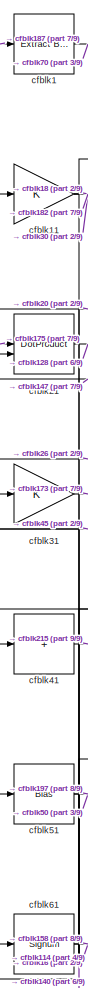
[diagram: root canvas - part 1/9, top left region]
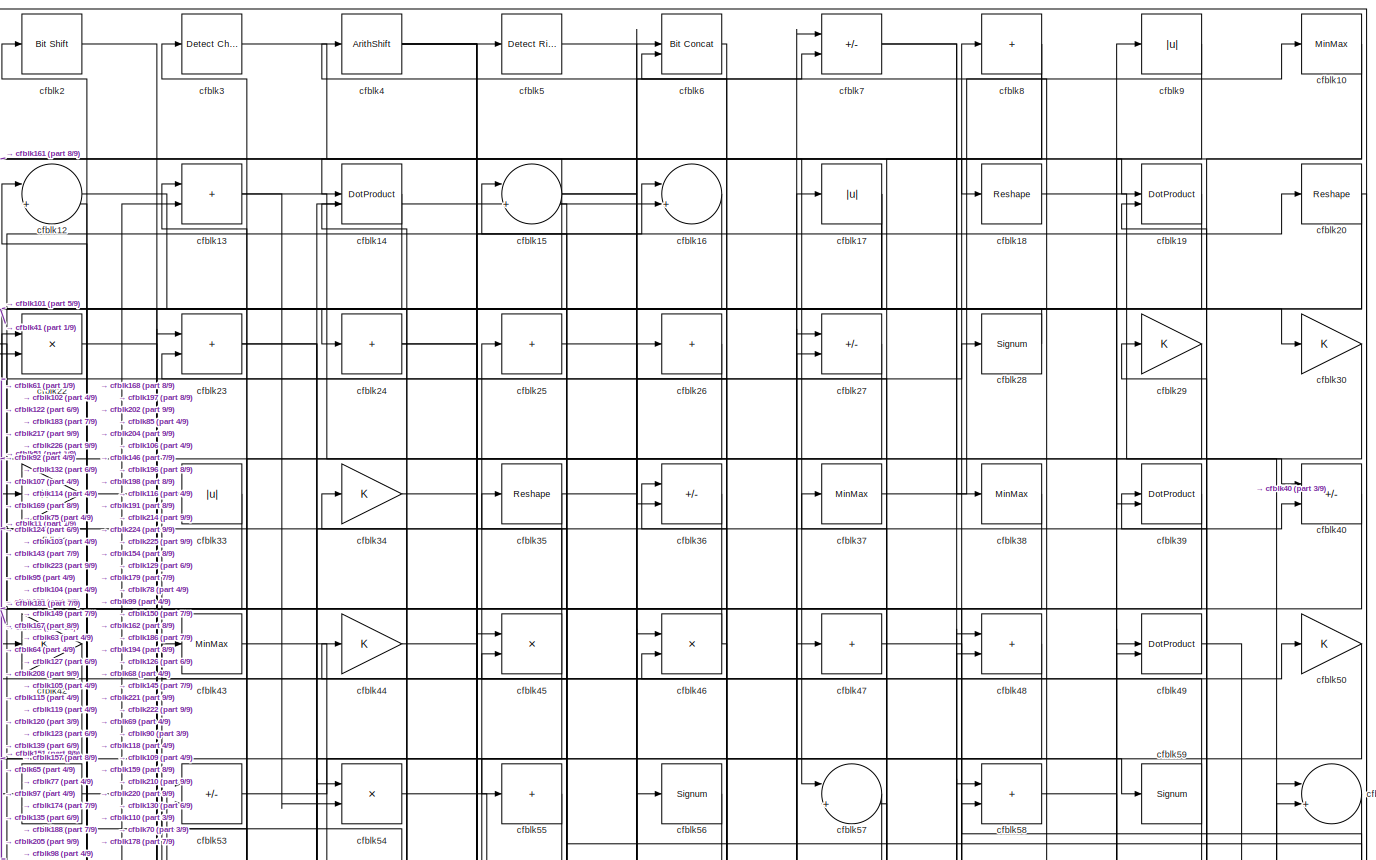
[diagram: root canvas - part 2/9, full width, top band]
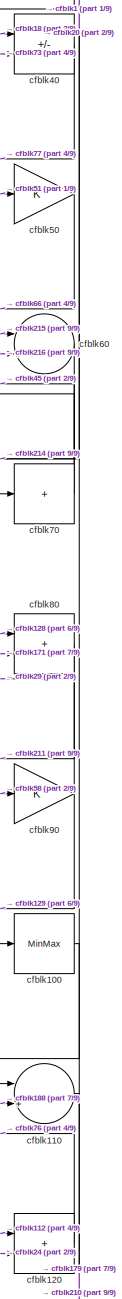
[diagram: root canvas - part 3/9, top right region]
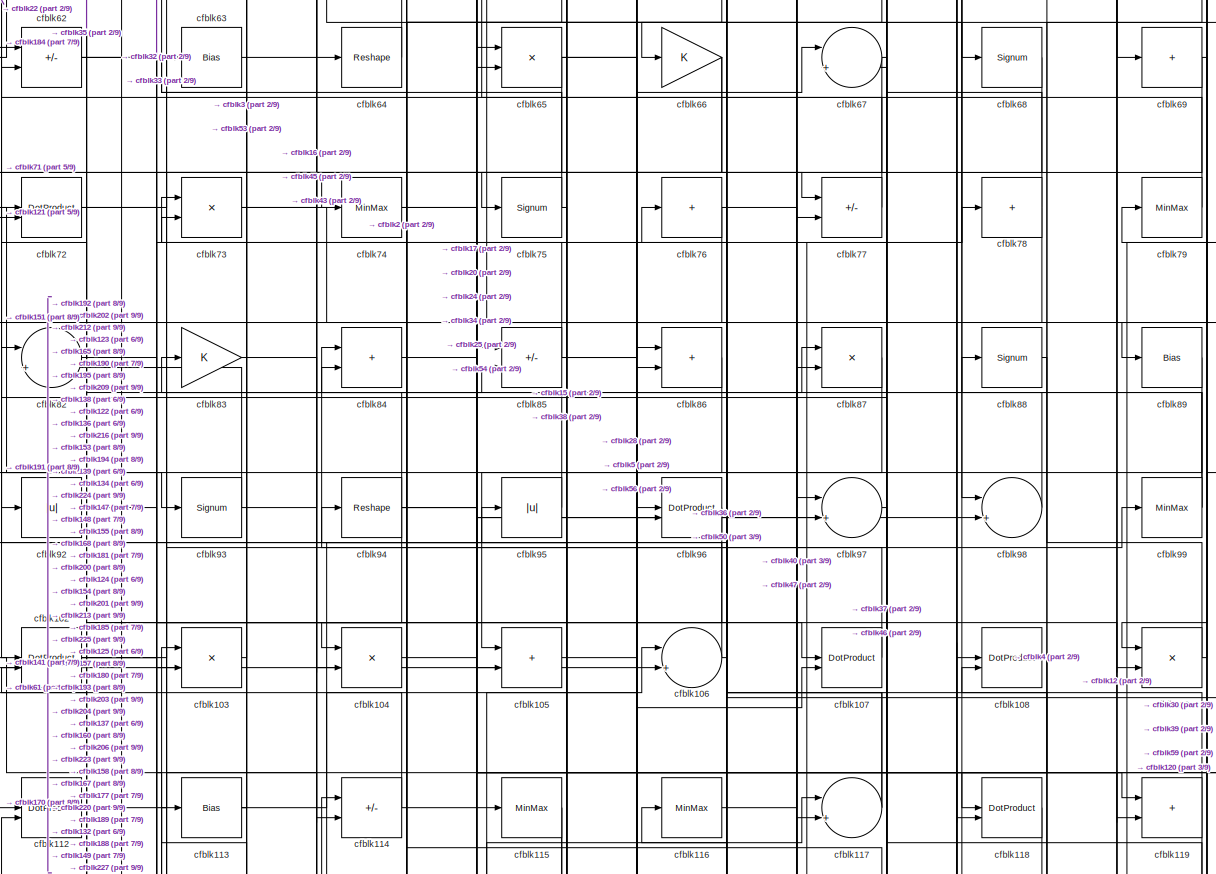
[diagram: root canvas - part 4/9, full width, middle band]
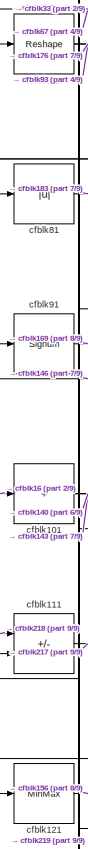
[diagram: root canvas - part 5/9, middle left region]
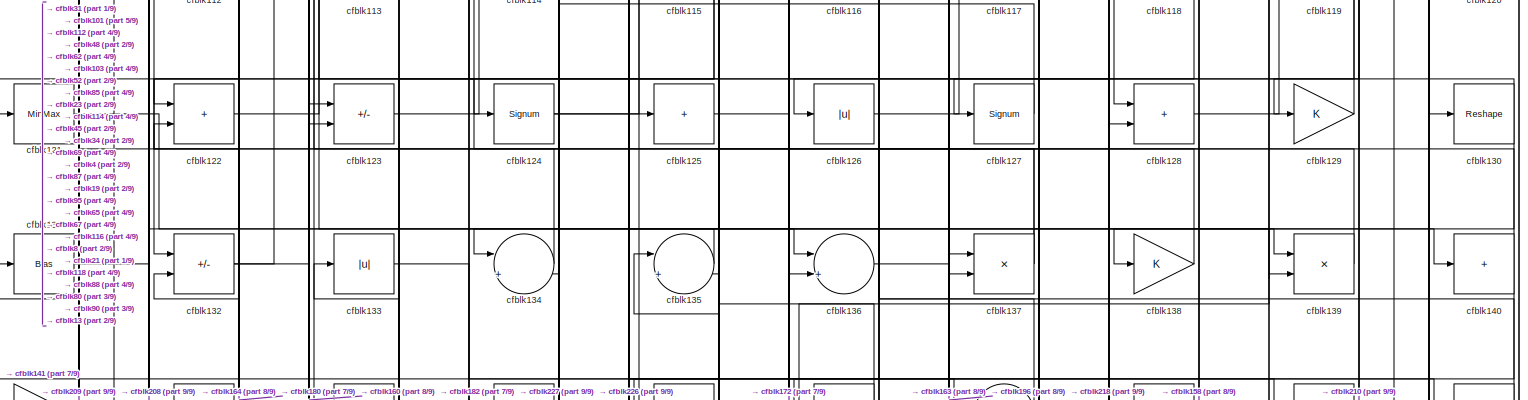
[diagram: root canvas - part 6/9, full width, middle band]
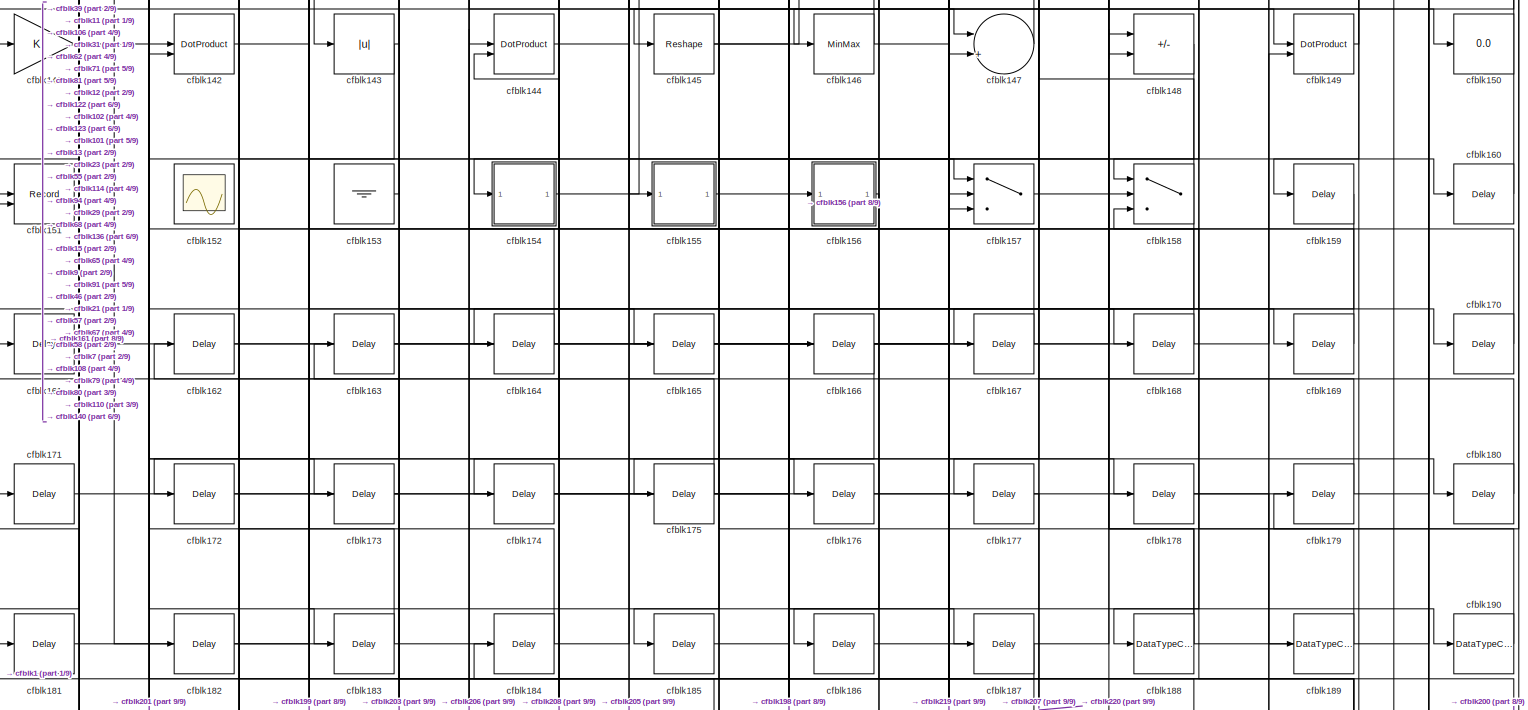
[diagram: root canvas - part 7/9, full width, bottom band]
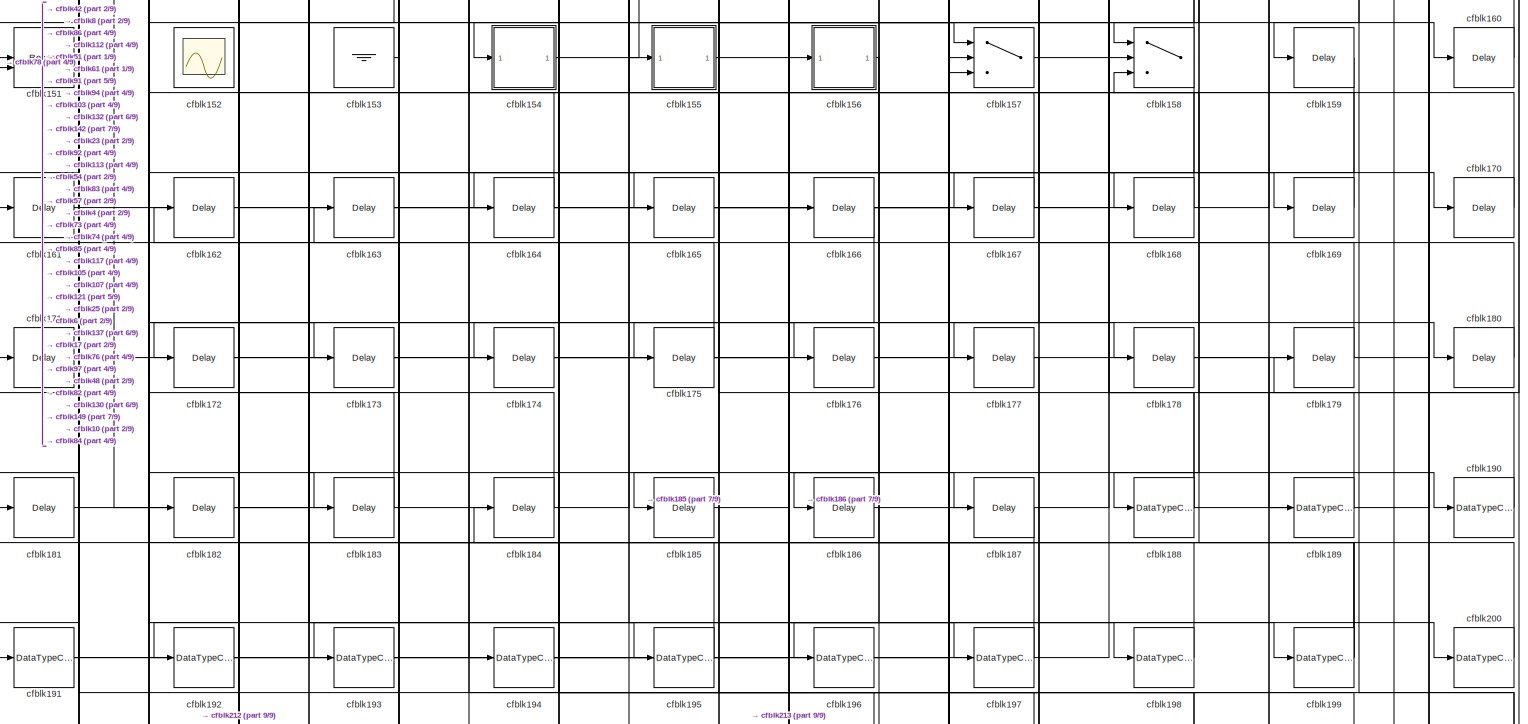
[diagram: root canvas - part 8/9, full width, bottom band]
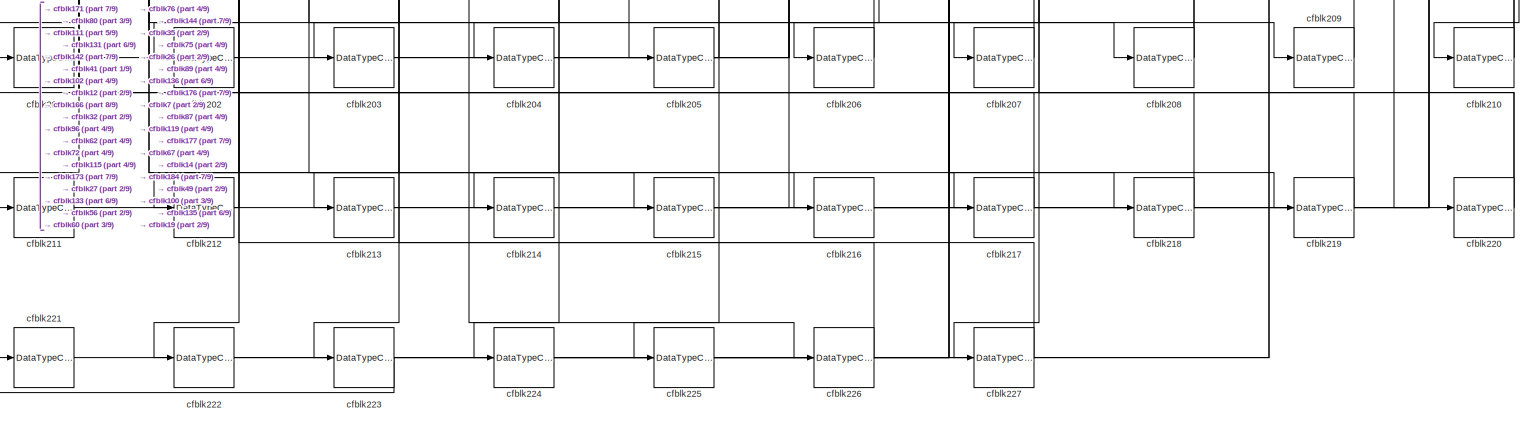
[diagram: root canvas - part 9/9, full width, bottom band]
MODEL slx_e378b6fee611
KIND model
CONFIG AbsTol = auto
CONFIG EnableMultiTasking = off
CONFIG FixedStep = auto
CONFIG MaxStep = auto
CONFIG MinStep = auto
CONFIG RelTol = 1e-3
CONFIG SampleTimeConstraint = Unconstrained
CONFIG SolverName = VariableStepAuto
CONFIG StartTime = 0.0
CONFIG StopTime = 10.0
BLOCK [Reference] cfblk1  REF=simulink/Logic and Bit
Operations/Extract Bits
  LibrarySourceBlock = hdlsllib/Logic and Bit\nOperations/Extract Bits
  SourceBlock = simulink/Logic and Bit\nOperations/Extract Bits
  SourceType = Extract Bits
BLOCK [MinMax] cfblk10
BLOCK [MinMax] cfblk100
BLOCK [Sum] cfblk101
  IconShape = rectangular
  Inputs = +
BLOCK [DotProduct] cfblk102
  OutDataTypeStr = Inherit: Inherit via internal rule
BLOCK [Product] cfblk103
  Inputs = */
  RndMeth = Zero
  SaturateOnIntegerOverflow = on
BLOCK [Product] cfblk104
  Inputs = */
  RndMeth = Zero
  SaturateOnIntegerOverflow = on
BLOCK [Sum] cfblk105
  IconShape = rectangular
BLOCK [Sum] cfblk106
  Inputs = |++
BLOCK [DotProduct] cfblk107
  OutDataTypeStr = Inherit: Inherit via internal rule
BLOCK [DotProduct] cfblk108
  OutDataTypeStr = Inherit: Inherit via internal rule
BLOCK [Product] cfblk109
  Inputs = */
  RndMeth = Zero
  SaturateOnIntegerOverflow = on
BLOCK [Gain] cfblk11
BLOCK [Sum] cfblk110
  Inputs = |++
BLOCK [Sum] cfblk111
  IconShape = rectangular
  Inputs = +-
BLOCK [DotProduct] cfblk112
  OutDataTypeStr = Inherit: Inherit via internal rule
BLOCK [Bias] cfblk113
  Bias = 0.0
  SaturateOnIntegerOverflow = off
BLOCK [Sum] cfblk114
  IconShape = rectangular
  Inputs = +-
BLOCK [MinMax] cfblk115
BLOCK [MinMax] cfblk116
BLOCK [Sum] cfblk117
  Inputs = |++
BLOCK [DotProduct] cfblk118
  OutDataTypeStr = Inherit: Inherit via internal rule
BLOCK [Sum] cfblk119
  IconShape = rectangular
BLOCK [Sum] cfblk12
  Inputs = |++
BLOCK [Sum] cfblk120
  IconShape = rectangular
BLOCK [MinMax] cfblk121
BLOCK [Sum] cfblk122
  IconShape = rectangular
BLOCK [Sum] cfblk123
  IconShape = rectangular
  Inputs = +-
BLOCK [Signum] cfblk124
BLOCK [Sum] cfblk125
  IconShape = rectangular
  Inputs = +
BLOCK [Abs] cfblk126
  SaturateOnIntegerOverflow = off
BLOCK [Signum] cfblk127
BLOCK [Sum] cfblk128
  IconShape = rectangular
BLOCK [Gain] cfblk129
BLOCK [Sum] cfblk13
  IconShape = rectangular
BLOCK [Reshape] cfblk130
BLOCK [Bias] cfblk131
  Bias = 0.0
  SaturateOnIntegerOverflow = off
BLOCK [Sum] cfblk132
  IconShape = rectangular
  Inputs = +-
BLOCK [Abs] cfblk133
  SaturateOnIntegerOverflow = off
BLOCK [Sum] cfblk134
  Inputs = |++
BLOCK [Sum] cfblk135
  Inputs = |++
BLOCK [Sum] cfblk136
  Inputs = |++
BLOCK [Product] cfblk137
  Inputs = */
  RndMeth = Zero
  SaturateOnIntegerOverflow = on
BLOCK [Gain] cfblk138
BLOCK [Product] cfblk139
  Inputs = */
  RndMeth = Zero
  SaturateOnIntegerOverflow = on
BLOCK [DotProduct] cfblk14
  OutDataTypeStr = Inherit: Inherit via internal rule
BLOCK [Sum] cfblk140
  IconShape = rectangular
  Inputs = +
BLOCK [Gain] cfblk141
BLOCK [DotProduct] cfblk142
  OutDataTypeStr = Inherit: Inherit via internal rule
BLOCK [Abs] cfblk143
  SaturateOnIntegerOverflow = off
BLOCK [DotProduct] cfblk144
  OutDataTypeStr = Inherit: Inherit via internal rule
BLOCK [Reshape] cfblk145
BLOCK [MinMax] cfblk146
BLOCK [Sum] cfblk147
  Inputs = |++
BLOCK [Sum] cfblk148
  IconShape = rectangular
  Inputs = +-
BLOCK [DotProduct] cfblk149
  OutDataTypeStr = Inherit: Inherit via internal rule
BLOCK [Sum] cfblk15
  Inputs = |++
BLOCK [Display] cfblk150
  Decimation = 1
BLOCK [Record] cfblk151
  CompatibilityTag = XY
  FileSettingsInternal = {"entries":[{"content":{"excelSettings":{"content":{},"type":"Streamout.ExcelSettings"}},"type":"Streamout.FileSettingStorage","uuid":""}],"packageUris":["http:\/\/schema.mathworks.com\/mf0\/streamout_blocks\/R2020a"],"version":"1.0"}
  Layout = [1 1]
  SignalsInternal = {"entries":[{"content":{"signals":[{"content":{"blockPath":[],"dimensions":[1],"domain":"","lineColor":"#a2142f","plots":[1],"port":1,"signalID":2773,"signalName":"XY Graph:1"},"type":"RecordBlkView.Signal","uuid":""},{"content":{"blockPath":[],"dimensions":[1],"domain":"","lineColor":"#139fff","plots":[1],"port":2,"signalID":2776,"signalName":"XY Graph:2"},"type":"RecordBlkView.Signal","uuid":""}...<+146ch>
  VisualizationBindings = {"xyplotplugin":{"info":[{"series":[{"bindingParametersList":[{"parameter":"X-Axis","signalID":2773,"signalName":"XY Graph:1"},{"parameter":"Y-Axis","signalID":2776,"signalName":"XY Graph:2"}],"seriesID":1462}],"subplotID":1}]}}
  st = -1
BLOCK [Scope] cfblk152
  Floating = on
  NumInputPorts = 1
  ScopeSpecificationString = Simulink.scopes.TimeScopeBlockCfg('CurrentConfiguration', extmgr.ConfigurationSet(extmgr.Configuration('Core','General UI',true,'FigureColor',[0.156862745098039 0.156862745098039 0.156862745098039]),extmgr.Configuration('Core','Source UI',true),extmgr.Configuration('Sources','WiredSimulink',true,'DataLoggingVariableName','ScopeData1','DataLoggingSaveFormat','StructureWithTime','DataLoggingLimitDat...<+2713ch>
BLOCK [Ground] cfblk153
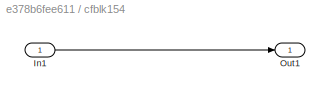
BLOCK [SubSystem] cfblk154
  LibrarySourceBlock = hdlsllib/Ports &\nSubsystems/Subsystem
BLOCK [Inport] cfblk154/In1
BLOCK [Outport] cfblk154/Out1
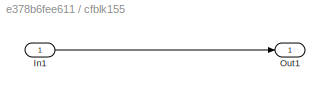
BLOCK [SubSystem] cfblk155
  LibrarySourceBlock = hdlsllib/Ports &\nSubsystems/Subsystem
BLOCK [Inport] cfblk155/In1
BLOCK [Outport] cfblk155/Out1
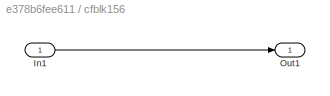
BLOCK [SubSystem] cfblk156
  LibrarySourceBlock = hdlsllib/Ports &\nSubsystems/Subsystem
BLOCK [Inport] cfblk156/In1
BLOCK [Outport] cfblk156/Out1
BLOCK [Switch] cfblk157
  InputSameDT = off
  SaturateOnIntegerOverflow = off
BLOCK [Switch] cfblk158
  InputSameDT = off
  SaturateOnIntegerOverflow = off
BLOCK [Delay] cfblk159
  InputPortMap = u0
  SampleTime = 1
BLOCK [Sum] cfblk16
  Inputs = |++
BLOCK [Delay] cfblk160
  InputPortMap = u0
  SampleTime = 1
BLOCK [Delay] cfblk161
  InputPortMap = u0
  SampleTime = 1
BLOCK [Delay] cfblk162
  InputPortMap = u0
  SampleTime = 1
BLOCK [Delay] cfblk163
  InputPortMap = u0
  SampleTime = 1
BLOCK [Delay] cfblk164
  InputPortMap = u0
  SampleTime = 1
BLOCK [Delay] cfblk165
  InputPortMap = u0
  SampleTime = 1
BLOCK [Delay] cfblk166
  InputPortMap = u0
  SampleTime = 1
BLOCK [Delay] cfblk167
  InputPortMap = u0
  SampleTime = 1
BLOCK [Delay] cfblk168
  InputPortMap = u0
  SampleTime = 1
BLOCK [Delay] cfblk169
  InputPortMap = u0
  SampleTime = 1
BLOCK [Abs] cfblk17
  SaturateOnIntegerOverflow = off
BLOCK [Delay] cfblk170
  InputPortMap = u0
  SampleTime = 1
BLOCK [Delay] cfblk171
  InputPortMap = u0
  SampleTime = 1
BLOCK [Delay] cfblk172
  InputPortMap = u0
  SampleTime = 1
BLOCK [Delay] cfblk173
  InputPortMap = u0
  SampleTime = 1
BLOCK [Delay] cfblk174
  InputPortMap = u0
  SampleTime = 1
BLOCK [Delay] cfblk175
  InputPortMap = u0
  SampleTime = 1
BLOCK [Delay] cfblk176
  InputPortMap = u0
  SampleTime = 1
BLOCK [Delay] cfblk177
  InputPortMap = u0
  SampleTime = 1
BLOCK [Delay] cfblk178
  InputPortMap = u0
  SampleTime = 1
BLOCK [Delay] cfblk179
  InputPortMap = u0
  SampleTime = 1
BLOCK [Reshape] cfblk18
BLOCK [Delay] cfblk180
  InputPortMap = u0
  SampleTime = 1
BLOCK [Delay] cfblk181
  InputPortMap = u0
  SampleTime = 1
BLOCK [Delay] cfblk182
  InputPortMap = u0
  SampleTime = 1
BLOCK [Delay] cfblk183
  InputPortMap = u0
  SampleTime = 1
BLOCK [Delay] cfblk184
  InputPortMap = u0
  SampleTime = 1
BLOCK [Delay] cfblk185
  InputPortMap = u0
  SampleTime = 1
BLOCK [Delay] cfblk186
  InputPortMap = u0
  SampleTime = 1
BLOCK [Delay] cfblk187
  InputPortMap = u0
  SampleTime = 1
BLOCK [DataTypeConversion] cfblk188
  RndMeth = Floor
  SaturateOnIntegerOverflow = off
BLOCK [DataTypeConversion] cfblk189
  OutDataTypeStr = uint8
  RndMeth = Floor
  SaturateOnIntegerOverflow = off
BLOCK [DotProduct] cfblk19
  OutDataTypeStr = Inherit: Inherit via internal rule
BLOCK [DataTypeConversion] cfblk190
  OutDataTypeStr = uint8
  RndMeth = Floor
  SaturateOnIntegerOverflow = off
BLOCK [DataTypeConversion] cfblk191
  RndMeth = Floor
  SaturateOnIntegerOverflow = off
BLOCK [DataTypeConversion] cfblk192
  OutDataTypeStr = uint8
  RndMeth = Floor
  SaturateOnIntegerOverflow = off
BLOCK [DataTypeConversion] cfblk193
  OutDataTypeStr = uint8
  RndMeth = Floor
  SaturateOnIntegerOverflow = off
BLOCK [DataTypeConversion] cfblk194
  OutDataTypeStr = uint8
  RndMeth = Floor
  SaturateOnIntegerOverflow = off
BLOCK [DataTypeConversion] cfblk195
  OutDataTypeStr = uint8
  RndMeth = Floor
  SaturateOnIntegerOverflow = off
BLOCK [DataTypeConversion] cfblk196
  OutDataTypeStr = uint8
  RndMeth = Floor
  SaturateOnIntegerOverflow = off
BLOCK [DataTypeConversion] cfblk197
  OutDataTypeStr = uint8
  RndMeth = Floor
  SaturateOnIntegerOverflow = off
BLOCK [DataTypeConversion] cfblk198
  OutDataTypeStr = uint8
  RndMeth = Floor
  SaturateOnIntegerOverflow = off
BLOCK [DataTypeConversion] cfblk199
  RndMeth = Floor
  SaturateOnIntegerOverflow = off
BLOCK [Reference] cfblk2  REF=hdlsllib/Logic and Bit
Operations/Bit Shift
  SourceBlock = hdlsllib/Logic and Bit\nOperations/Bit Shift
  SourceType = Bit Shift
BLOCK [Reshape] cfblk20
BLOCK [DataTypeConversion] cfblk200
  OutDataTypeStr = uint8
  RndMeth = Floor
  SaturateOnIntegerOverflow = off
BLOCK [DataTypeConversion] cfblk201
  OutDataTypeStr = uint8
  RndMeth = Floor
  SaturateOnIntegerOverflow = off
BLOCK [DataTypeConversion] cfblk202
  RndMeth = Floor
  SaturateOnIntegerOverflow = off
BLOCK [DataTypeConversion] cfblk203
  OutDataTypeStr = uint8
  RndMeth = Floor
  SaturateOnIntegerOverflow = off
BLOCK [DataTypeConversion] cfblk204
  OutDataTypeStr = uint8
  RndMeth = Floor
  SaturateOnIntegerOverflow = off
BLOCK [DataTypeConversion] cfblk205
  OutDataTypeStr = uint8
  RndMeth = Floor
  SaturateOnIntegerOverflow = off
BLOCK [DataTypeConversion] cfblk206
  OutDataTypeStr = uint8
  RndMeth = Floor
  SaturateOnIntegerOverflow = off
BLOCK [DataTypeConversion] cfblk207
  OutDataTypeStr = uint8
  RndMeth = Floor
  SaturateOnIntegerOverflow = off
BLOCK [DataTypeConversion] cfblk208
  RndMeth = Floor
  SaturateOnIntegerOverflow = off
BLOCK [DataTypeConversion] cfblk209
  OutDataTypeStr = uint8
  RndMeth = Floor
  SaturateOnIntegerOverflow = off
BLOCK [DotProduct] cfblk21
  OutDataTypeStr = Inherit: Inherit via internal rule
BLOCK [DataTypeConversion] cfblk210
  RndMeth = Floor
  SaturateOnIntegerOverflow = off
BLOCK [DataTypeConversion] cfblk211
  OutDataTypeStr = uint8
  RndMeth = Floor
  SaturateOnIntegerOverflow = off
BLOCK [DataTypeConversion] cfblk212
  OutDataTypeStr = uint8
  RndMeth = Floor
  SaturateOnIntegerOverflow = off
BLOCK [DataTypeConversion] cfblk213
  OutDataTypeStr = uint8
  RndMeth = Floor
  SaturateOnIntegerOverflow = off
BLOCK [DataTypeConversion] cfblk214
  OutDataTypeStr = uint8
  RndMeth = Floor
  SaturateOnIntegerOverflow = off
BLOCK [DataTypeConversion] cfblk215
  OutDataTypeStr = uint8
  RndMeth = Floor
  SaturateOnIntegerOverflow = off
BLOCK [DataTypeConversion] cfblk216
  OutDataTypeStr = uint8
  RndMeth = Floor
  SaturateOnIntegerOverflow = off
BLOCK [DataTypeConversion] cfblk217
  OutDataTypeStr = uint8
  RndMeth = Floor
  SaturateOnIntegerOverflow = off
BLOCK [DataTypeConversion] cfblk218
  OutDataTypeStr = uint8
  RndMeth = Floor
  SaturateOnIntegerOverflow = off
BLOCK [DataTypeConversion] cfblk219
  OutDataTypeStr = uint8
  RndMeth = Floor
  SaturateOnIntegerOverflow = off
BLOCK [Product] cfblk22
  Inputs = */
  RndMeth = Zero
  SaturateOnIntegerOverflow = on
BLOCK [DataTypeConversion] cfblk220
  RndMeth = Floor
  SaturateOnIntegerOverflow = off
BLOCK [DataTypeConversion] cfblk221
  OutDataTypeStr = uint8
  RndMeth = Floor
  SaturateOnIntegerOverflow = off
BLOCK [DataTypeConversion] cfblk222
  OutDataTypeStr = uint8
  RndMeth = Floor
  SaturateOnIntegerOverflow = off
BLOCK [DataTypeConversion] cfblk223
  RndMeth = Floor
  SaturateOnIntegerOverflow = off
BLOCK [DataTypeConversion] cfblk224
  OutDataTypeStr = uint8
  RndMeth = Floor
  SaturateOnIntegerOverflow = off
BLOCK [DataTypeConversion] cfblk225
  OutDataTypeStr = uint8
  RndMeth = Floor
  SaturateOnIntegerOverflow = off
BLOCK [DataTypeConversion] cfblk226
  OutDataTypeStr = uint8
  RndMeth = Floor
  SaturateOnIntegerOverflow = off
BLOCK [DataTypeConversion] cfblk227
  OutDataTypeStr = uint8
  RndMeth = Floor
  SaturateOnIntegerOverflow = off
BLOCK [Sum] cfblk23
  IconShape = rectangular
BLOCK [Sum] cfblk24
  IconShape = rectangular
  Inputs = +
BLOCK [Sum] cfblk25
  IconShape = rectangular
  Inputs = +
BLOCK [Sum] cfblk26
  IconShape = rectangular
  Inputs = +
BLOCK [Sum] cfblk27
  IconShape = rectangular
  Inputs = +-
BLOCK [Signum] cfblk28
BLOCK [Gain] cfblk29
BLOCK [Reference] cfblk3  REF=simulink/Logic and Bit
Operations/Detect
Change
  LibrarySourceBlock = hdlsllib/Logic and Bit\nOperations/Detect\nChange
  SourceBlock = simulink/Logic and Bit\nOperations/Detect\nChange
  SourceType = Detect Change
BLOCK [Gain] cfblk30
BLOCK [Gain] cfblk31
BLOCK [Gain] cfblk32
BLOCK [Abs] cfblk33
  SaturateOnIntegerOverflow = off
BLOCK [Gain] cfblk34
BLOCK [Reshape] cfblk35
BLOCK [Sum] cfblk36
  IconShape = rectangular
  Inputs = +-
BLOCK [MinMax] cfblk37
BLOCK [MinMax] cfblk38
BLOCK [DotProduct] cfblk39
  OutDataTypeStr = Inherit: Inherit via internal rule
BLOCK [ArithShift] cfblk4
  BitShiftNumber = 8
  InputPortMap = u0
BLOCK [Sum] cfblk40
  IconShape = rectangular
  Inputs = +-
BLOCK [Sum] cfblk41
  IconShape = rectangular
  Inputs = +
BLOCK [Gain] cfblk42
BLOCK [MinMax] cfblk43
BLOCK [Gain] cfblk44
BLOCK [Product] cfblk45
  Inputs = */
  RndMeth = Zero
  SaturateOnIntegerOverflow = on
BLOCK [Product] cfblk46
  Inputs = */
  RndMeth = Zero
  SaturateOnIntegerOverflow = on
BLOCK [Sum] cfblk47
  IconShape = rectangular
  Inputs = +
BLOCK [Sum] cfblk48
  IconShape = rectangular
BLOCK [DotProduct] cfblk49
  OutDataTypeStr = Inherit: Inherit via internal rule
BLOCK [Reference] cfblk5  REF=hdlsllib/Logic and Bit
Operations/Detect Rise
Nonnegative
  SourceBlock = hdlsllib/Logic and Bit\nOperations/Detect Rise\nNonnegative
  SourceType = Detect Rise Nonnegative
BLOCK [Gain] cfblk50
BLOCK [Bias] cfblk51
  Bias = 0.0
  SaturateOnIntegerOverflow = off
BLOCK [Bias] cfblk52
  Bias = 0.0
  SaturateOnIntegerOverflow = off
BLOCK [Sum] cfblk53
  IconShape = rectangular
  Inputs = +-
BLOCK [Product] cfblk54
  Inputs = */
  RndMeth = Zero
  SaturateOnIntegerOverflow = on
BLOCK [Sum] cfblk55
  IconShape = rectangular
  Inputs = +
BLOCK [Signum] cfblk56
BLOCK [Sum] cfblk57
  Inputs = |++
BLOCK [Sum] cfblk58
  IconShape = rectangular
BLOCK [Signum] cfblk59
BLOCK [Reference] cfblk6  REF=hdlsllib/Logic and Bit
Operations/Bit Concat
  SourceBlock = hdlsllib/Logic and Bit\nOperations/Bit Concat
  SourceType = Bit Concat
BLOCK [Sum] cfblk60
  Inputs = |++
BLOCK [Signum] cfblk61
BLOCK [Sum] cfblk62
  IconShape = rectangular
  Inputs = +-
BLOCK [Bias] cfblk63
  Bias = 0.0
  SaturateOnIntegerOverflow = off
BLOCK [Reshape] cfblk64
BLOCK [Product] cfblk65
  Inputs = */
  RndMeth = Zero
  SaturateOnIntegerOverflow = on
BLOCK [Gain] cfblk66
BLOCK [Sum] cfblk67
  Inputs = |++
BLOCK [Signum] cfblk68
BLOCK [Sum] cfblk69
  IconShape = rectangular
  Inputs = +
BLOCK [Sum] cfblk7
  IconShape = rectangular
  Inputs = +-
BLOCK [Sum] cfblk70
  IconShape = rectangular
  Inputs = +
BLOCK [Reshape] cfblk71
BLOCK [DotProduct] cfblk72
  OutDataTypeStr = Inherit: Inherit via internal rule
BLOCK [Product] cfblk73
  Inputs = */
  RndMeth = Zero
  SaturateOnIntegerOverflow = on
BLOCK [MinMax] cfblk74
BLOCK [Signum] cfblk75
BLOCK [Sum] cfblk76
  IconShape = rectangular
  Inputs = +
BLOCK [Sum] cfblk77
  IconShape = rectangular
  Inputs = +-
BLOCK [Sum] cfblk78
  IconShape = rectangular
  Inputs = +
BLOCK [MinMax] cfblk79
BLOCK [Sum] cfblk8
  IconShape = rectangular
  Inputs = +
BLOCK [Sum] cfblk80
  IconShape = rectangular
BLOCK [Abs] cfblk81
  SaturateOnIntegerOverflow = off
BLOCK [Sum] cfblk82
  Inputs = |++
BLOCK [Gain] cfblk83
BLOCK [Sum] cfblk84
  IconShape = rectangular
BLOCK [Sum] cfblk85
  IconShape = rectangular
  Inputs = +-
BLOCK [Sum] cfblk86
  IconShape = rectangular
BLOCK [Product] cfblk87
  Inputs = */
  RndMeth = Zero
  SaturateOnIntegerOverflow = on
BLOCK [Signum] cfblk88
BLOCK [Bias] cfblk89
  Bias = 0.0
  SaturateOnIntegerOverflow = off
BLOCK [Abs] cfblk9
  SaturateOnIntegerOverflow = off
BLOCK [Gain] cfblk90
BLOCK [Signum] cfblk91
BLOCK [Abs] cfblk92
  SaturateOnIntegerOverflow = off
BLOCK [Signum] cfblk93
BLOCK [Reshape] cfblk94
BLOCK [Abs] cfblk95
  SaturateOnIntegerOverflow = off
BLOCK [DotProduct] cfblk96
  OutDataTypeStr = Inherit: Inherit via internal rule
BLOCK [Sum] cfblk97
  Inputs = |++
BLOCK [Sum] cfblk98
  Inputs = |++
BLOCK [MinMax] cfblk99
LINE cfblk100:1 -> cfblk210:1
NET cfblk101:1 -> cfblk140:1, cfblk143:1
NET cfblk102:1 -> cfblk190:1, cfblk78:1, cfblk99:1
LINE cfblk103:1 -> cfblk53:1
LINE cfblk104:1 -> cfblk20:1
LINE cfblk105:1 -> cfblk157:1
NET cfblk106:1 -> cfblk22:1, cfblk36:1
LINE cfblk107:1 -> cfblk84:1
LINE cfblk108:1 -> cfblk188:1
NET cfblk109:1 -> cfblk39:1, cfblk4:1
NET cfblk10:1 -> cfblk159:1, cfblk22:2
LINE cfblk110:1 -> cfblk179:1
LINE cfblk111:1 -> cfblk217:1
LINE cfblk112:1 -> cfblk120:1
NET cfblk113:1 -> cfblk106:1, cfblk63:1
NET cfblk114:1 -> cfblk148:2, cfblk61:1
NET cfblk115:1 -> cfblk201:1, cfblk213:1
LINE cfblk116:1 -> cfblk47:1
NET cfblk117:1 -> cfblk73:1, cfblk94:1
LINE cfblk118:1 -> cfblk132:1
NET cfblk119:1 -> cfblk227:1, cfblk43:1
NET cfblk11:1 -> cfblk182:1, cfblk18:1, cfblk30:1
LINE cfblk120:1 -> cfblk76:1
LINE cfblk121:1 -> cfblk156:1
LINE cfblk122:1 -> cfblk85:2
LINE cfblk123:1 -> cfblk45:1
NET cfblk124:1 -> cfblk125:1, cfblk87:1
LINE cfblk125:1 -> cfblk67:1
LINE cfblk126:1 -> cfblk8:1
LINE cfblk127:1 -> cfblk34:1
LINE cfblk128:1 -> cfblk80:1
LINE cfblk129:1 -> cfblk23:2
LINE cfblk12:1 -> cfblk69:1
NET cfblk130:1 -> cfblk126:1, cfblk158:1
LINE cfblk131:1 -> cfblk208:1
NET cfblk132:1 -> cfblk13:2, cfblk160:1
LINE cfblk133:1 -> cfblk226:1
LINE cfblk134:1 -> cfblk112:2
LINE cfblk135:1 -> cfblk134:1
LINE cfblk136:1 -> cfblk218:1
NET cfblk137:1 -> cfblk116:1, cfblk95:1
LINE cfblk138:1 -> cfblk103:1
LINE cfblk139:1 -> cfblk114:1
NET cfblk13:1 -> cfblk130:1, cfblk54:2
NET cfblk140:1 -> cfblk141:1, cfblk31:1
LINE cfblk141:1 -> cfblk106:2
LINE cfblk142:1 -> cfblk199:1
NET cfblk143:1 -> cfblk13:1, cfblk172:1
LINE cfblk144:1 -> cfblk205:1
NET cfblk145:1 -> cfblk187:1, cfblk9:1
NET cfblk146:1 -> cfblk147:2, cfblk91:1
LINE cfblk147:1 -> cfblk21:2
LINE cfblk148:1 -> cfblk175:1
LINE cfblk149:1 -> cfblk79:1
LINE cfblk14:1 -> cfblk52:1
LINE cfblk153:1 -> cfblk113:1
LINE cfblk154/In1:1 -> cfblk154/Out1:1
LINE cfblk154:1 -> cfblk117:1
LINE cfblk155/In1:1 -> cfblk155/Out1:1
LINE cfblk155:1 -> cfblk107:2
LINE cfblk156/In1:1 -> cfblk156/Out1:1
LINE cfblk156:1 -> cfblk186:1
LINE cfblk157:1 -> cfblk170:1
NET cfblk158:1 -> cfblk164:1, cfblk82:1
LINE cfblk159:1 -> cfblk193:1
NET cfblk15:1 -> cfblk14:1, cfblk178:1, cfblk19:1, cfblk53:2
LINE cfblk160:1 -> cfblk84:2
LINE cfblk161:1 -> cfblk149:2
LINE cfblk162:1 -> cfblk48:1
LINE cfblk163:1 -> cfblk137:2
LINE cfblk164:1 -> cfblk132:2
LINE cfblk165:1 -> cfblk117:2
LINE cfblk166:1 -> cfblk212:1
LINE cfblk167:1 -> cfblk54:1
LINE cfblk168:1 -> cfblk85:1
LINE cfblk169:1 -> cfblk23:1
LINE cfblk16:1 -> cfblk101:1
LINE cfblk170:1 -> cfblk112:1
LINE cfblk171:1 -> cfblk80:2
LINE cfblk172:1 -> cfblk136:2
LINE cfblk173:1 -> cfblk203:1
LINE cfblk174:1 -> cfblk46:1
LINE cfblk175:1 -> cfblk21:1
LINE cfblk176:1 -> cfblk219:1
LINE cfblk177:1 -> cfblk207:1
LINE cfblk178:1 -> cfblk189:1
LINE cfblk179:1 -> cfblk57:2
NET cfblk17:1 -> cfblk102:1, cfblk104:1, cfblk65:2
LINE cfblk180:1 -> cfblk122:2
LINE cfblk181:1 -> cfblk65:1
LINE cfblk182:1 -> cfblk123:1
LINE cfblk183:1 -> cfblk12:2
LINE cfblk184:1 -> cfblk62:1
LINE cfblk185:1 -> cfblk198:1
LINE cfblk186:1 -> cfblk58:1
LINE cfblk187:1 -> cfblk1:1
NET cfblk188:1 -> cfblk110:2, cfblk148:1, cfblk15:2
LINE cfblk189:1 -> cfblk108:1
LINE cfblk18:1 -> cfblk40:1
LINE cfblk190:1 -> cfblk108:2
NET cfblk191:1 -> cfblk103:2, cfblk17:1
LINE cfblk192:1 -> cfblk86:1
LINE cfblk193:1 -> cfblk86:2
LINE cfblk194:1 -> cfblk48:2
LINE cfblk195:1 -> cfblk83:1
LINE cfblk196:1 -> cfblk137:1
LINE cfblk197:1 -> cfblk6:1
LINE cfblk198:1 -> cfblk6:2
NET cfblk199:1 -> cfblk158:3, cfblk162:1, cfblk163:1
LINE cfblk19:1 -> cfblk135:2
LINE cfblk1:1 -> cfblk70:1
LINE cfblk200:1 -> cfblk142:1
LINE cfblk201:1 -> cfblk142:2
NET cfblk202:1 -> cfblk222:1, cfblk26:1
LINE cfblk203:1 -> cfblk96:1
LINE cfblk204:1 -> cfblk96:2
LINE cfblk205:1 -> cfblk35:1
LINE cfblk206:1 -> cfblk144:1
LINE cfblk207:1 -> cfblk144:2
NET cfblk208:1 -> cfblk14:2, cfblk184:1
LINE cfblk209:1 -> cfblk131:1
NET cfblk20:1 -> cfblk105:2, cfblk110:1, cfblk41:1
NET cfblk210:1 -> cfblk135:1, cfblk19:2
LINE cfblk211:1 -> cfblk100:1
LINE cfblk212:1 -> cfblk102:2
LINE cfblk213:1 -> cfblk166:1
LINE cfblk214:1 -> cfblk7:1
LINE cfblk215:1 -> cfblk60:1
LINE cfblk216:1 -> cfblk60:2
LINE cfblk217:1 -> cfblk12:1
LINE cfblk218:1 -> cfblk111:1
LINE cfblk219:1 -> cfblk111:2
LINE cfblk21:1 -> cfblk128:1
NET cfblk220:1 -> cfblk171:1, cfblk67:2
LINE cfblk221:1 -> cfblk49:1
LINE cfblk222:1 -> cfblk49:2
NET cfblk223:1 -> cfblk221:1, cfblk87:2
LINE cfblk224:1 -> cfblk27:1
LINE cfblk225:1 -> cfblk27:2
LINE cfblk226:1 -> cfblk32:1
LINE cfblk227:1 -> cfblk133:1
LINE cfblk22:1 -> cfblk107:1
NET cfblk23:1 -> cfblk128:2, cfblk149:1
NET cfblk24:1 -> cfblk119:1, cfblk120:2
LINE cfblk25:1 -> cfblk168:1
LINE cfblk26:1 -> cfblk51:1
LINE cfblk27:1 -> cfblk223:1
LINE cfblk28:1 -> cfblk24:1
LINE cfblk29:1 -> cfblk145:1
LINE cfblk2:1 -> cfblk114:2
LINE cfblk30:1 -> cfblk109:1
LINE cfblk31:1 -> cfblk173:1
LINE cfblk32:1 -> cfblk109:2
LINE cfblk33:1 -> cfblk81:1
LINE cfblk34:1 -> cfblk115:1
NET cfblk35:1 -> cfblk7:2, cfblk92:1
LINE cfblk36:1 -> cfblk55:1
LINE cfblk37:1 -> cfblk10:1
LINE cfblk38:1 -> cfblk75:1
LINE cfblk39:1 -> cfblk181:1
LINE cfblk3:1 -> cfblk57:1
LINE cfblk40:1 -> cfblk77:2
LINE cfblk41:1 -> cfblk215:1
LINE cfblk42:1 -> cfblk151:1
LINE cfblk43:1 -> cfblk98:1
LINE cfblk44:1 -> cfblk5:1
NET cfblk45:1 -> cfblk104:2, cfblk11:1
NET cfblk46:1 -> cfblk146:1, cfblk42:1
LINE cfblk47:1 -> cfblk68:1
LINE cfblk48:1 -> cfblk122:1
LINE cfblk49:1 -> cfblk220:1
NET cfblk4:1 -> cfblk139:2, cfblk157:3, cfblk36:2, cfblk97:2
LINE cfblk50:1 -> cfblk66:1
NET cfblk51:1 -> cfblk197:1, cfblk50:1
LINE cfblk52:1 -> cfblk124:1
LINE cfblk53:1 -> cfblk59:1
LINE cfblk54:1 -> cfblk97:1
LINE cfblk55:1 -> cfblk174:1
LINE cfblk56:1 -> cfblk204:1
LINE cfblk57:1 -> cfblk154:1
LINE cfblk58:1 -> cfblk90:1
NET cfblk59:1 -> cfblk118:1, cfblk44:1
LINE cfblk5:1 -> cfblk77:1
LINE cfblk60:1 -> cfblk214:1
NET cfblk61:1 -> cfblk158:2, cfblk16:1
NET cfblk62:1 -> cfblk136:1, cfblk216:1
LINE cfblk63:1 -> cfblk16:2
LINE cfblk64:1 -> cfblk2:1
NET cfblk65:1 -> cfblk123:2, cfblk139:1, cfblk180:1
NET cfblk66:1 -> cfblk121:1, cfblk72:2
NET cfblk67:1 -> cfblk177:1, cfblk71:1
LINE cfblk68:1 -> cfblk185:1
NET cfblk69:1 -> cfblk134:2, cfblk89:1
LINE cfblk6:1 -> cfblk196:1
NET cfblk70:1 -> cfblk45:2, cfblk58:2
NET cfblk71:1 -> cfblk176:1, cfblk93:1
NET cfblk72:1 -> cfblk209:1, cfblk74:1
NET cfblk73:1 -> cfblk155:1, cfblk40:2
NET cfblk74:1 -> cfblk200:1, cfblk98:2
NET cfblk75:1 -> cfblk225:1, cfblk33:1
NET cfblk76:1 -> cfblk157:2, cfblk224:1
LINE cfblk77:1 -> cfblk25:1
NET cfblk78:1 -> cfblk151:2, cfblk46:2
LINE cfblk79:1 -> cfblk62:2
NET cfblk7:1 -> cfblk150:1, cfblk38:1
LINE cfblk80:1 -> cfblk211:1
LINE cfblk81:1 -> cfblk183:1
LINE cfblk82:1 -> cfblk165:1
LINE cfblk83:1 -> cfblk194:1
LINE cfblk84:1 -> cfblk118:2
NET cfblk85:1 -> cfblk28:1, cfblk56:1, cfblk73:2
LINE cfblk86:1 -> cfblk191:1
LINE cfblk87:1 -> cfblk105:1
LINE cfblk88:1 -> cfblk138:1
LINE cfblk89:1 -> cfblk206:1
NET cfblk8:1 -> cfblk127:1, cfblk161:1
NET cfblk90:1 -> cfblk129:1, cfblk29:1
LINE cfblk91:1 -> cfblk169:1
LINE cfblk92:1 -> cfblk195:1
NET cfblk93:1 -> cfblk64:1, cfblk82:2
NET cfblk94:1 -> cfblk119:2, cfblk147:1, cfblk192:1, cfblk72:1
LINE cfblk95:1 -> cfblk3:1
LINE cfblk96:1 -> cfblk202:1
LINE cfblk97:1 -> cfblk167:1
LINE cfblk98:1 -> cfblk15:1
NET cfblk99:1 -> cfblk37:1, cfblk88:1
LINE cfblk9:1 -> cfblk39:2
note: NET lines group one-source signal fan-out (src -> all destinations, sorted); 1:1 wires keep LINE
